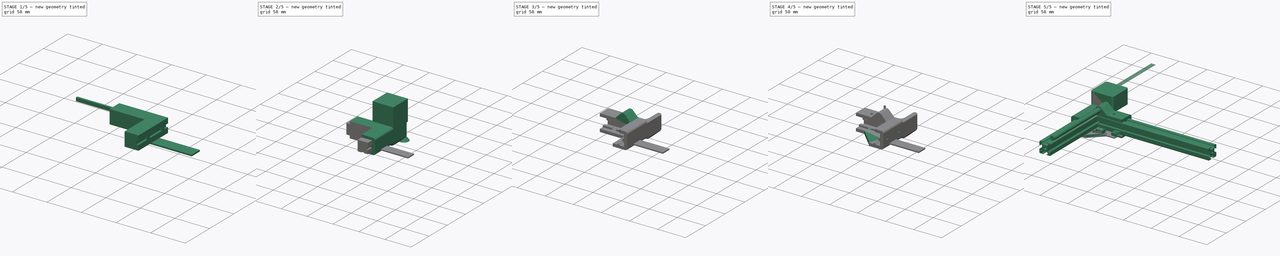
[diagram: build sequence overview — one tinted view per stage of 5, left to right]
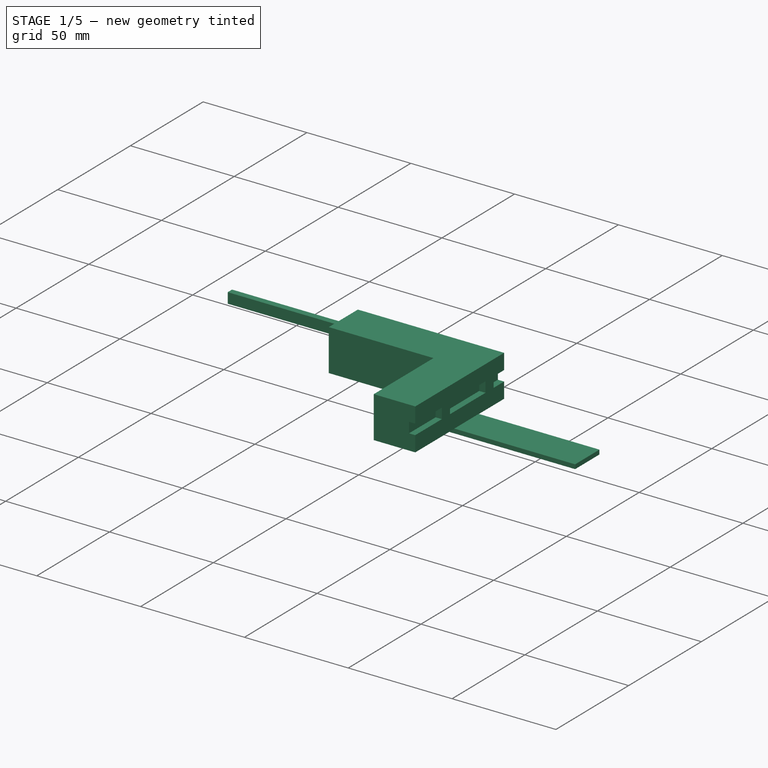
[diagram: stage 1 of 5 — iso view after this stage's code; geometry added in this stage tinted green]
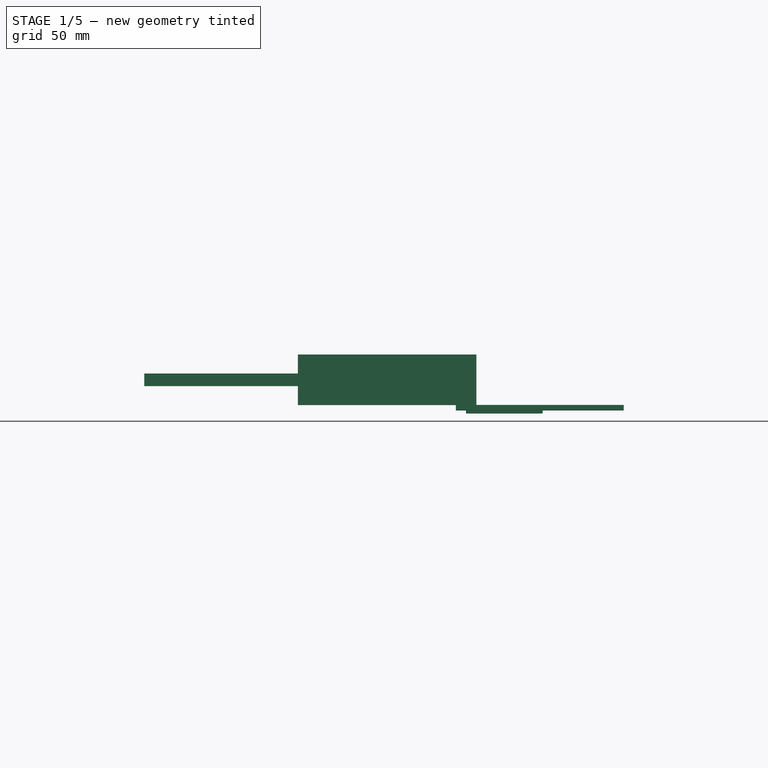
[diagram: stage 1 of 5 — front view after this stage's code; geometry added in this stage tinted green]
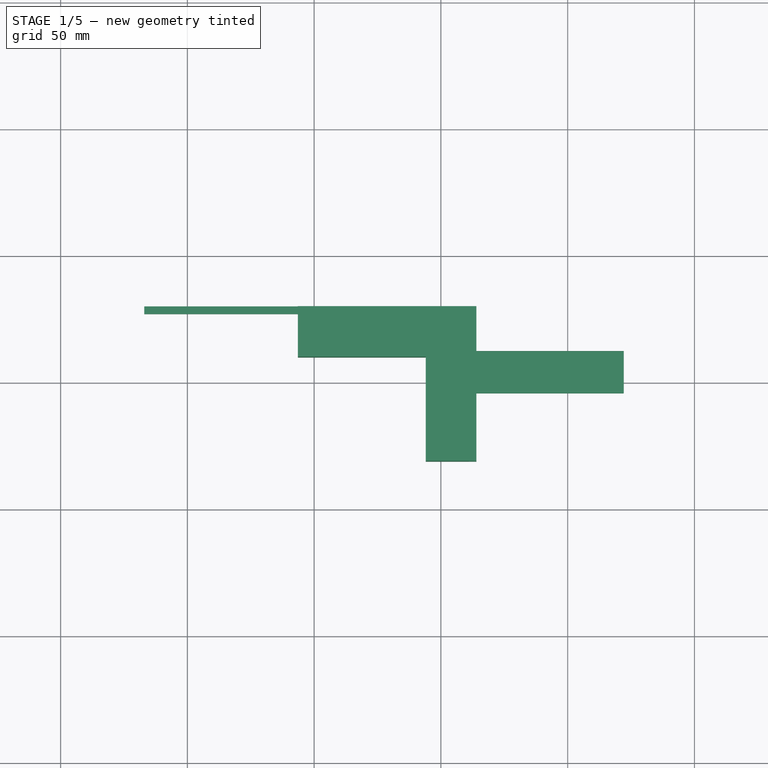
[diagram: stage 1 of 5 — top view after this stage's code; geometry added in this stage tinted green]
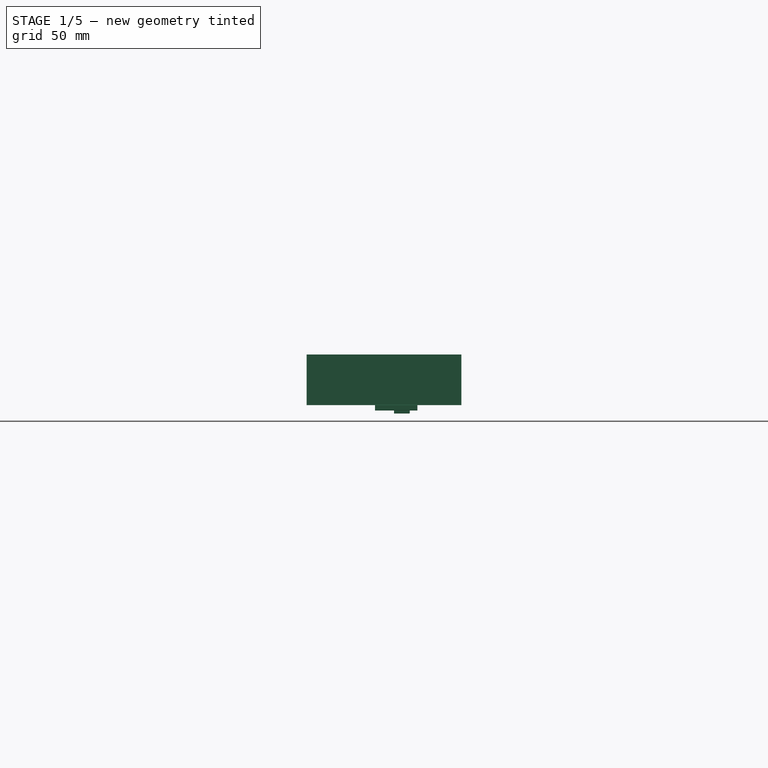
[diagram: stage 1 of 5 — right view after this stage's code; geometry added in this stage tinted green]
FCSTD DOCUMENT  (FreeCAD 0.16R6698 (Git))
Label: BackCorner
License: All rights reserved
LicenseURL: http://en.wikipedia.org/wiki/All_rights_reserved
objects: Part::Cut×20, Sketcher::SketchObject×17, Part::FeaturePython×15, Part::Mirroring×10, PartDesign::Pad×9, App::DocumentObjectGroup×6, Part::Box×5, Part::Fillet×4, Part::Compound×4, Part::Feature×3, Part::Extrusion×3, PartDesign::Pocket×2, PartDesign::Draft×2, Part::MultiCommon×2, Part::Chamfer×2, Part::Loft×1, Part::MultiFuse×1, Spreadsheet::Sheet×1, Part::Cone×1, Part::Cylinder×1, +1 more types
note: 114 computed .brp shape members not serialized (recipe doc carries the construction recipe); baked Part::Feature solids carry a one-line shape summary decoded from their .brp

FEATURE [Part::Box] Box002  label="20GuideHalf001"
  Height = 100
  Length = 3
  Placement = pos=(0,2.5,-2.825) rot=(1,0,0;3.14159rad)
  Width = 5
FEATURE [Sketcher::SketchObject] Sketch021  label="ProfBoltHeads"
  sketch-geometry (1):
    g0: Circle CenterX=0 CenterY=0 CenterZ=0 NormalX=0 NormalY=0 NormalZ=1 Radius=4
  constraints (2):
    c: Coincident(g0,g-1)
    c: Radius(g0) = 4
FEATURE [Sketcher::SketchObject] Sketch007  label="NEMAbolt"
  sketch-geometry (5):
    g0: ArcOfCircle CenterX=0 CenterY=0 CenterZ=0 NormalX=0 NormalY=0 NormalZ=1 Radius=1.5 StartAngle=3.927 EndAngle=8.63937
    g1: LineSegment StartX=-1.06065 StartY=1.06067 StartZ=0 EndX=-2.12132 EndY=0 EndZ=0
    g2: LineSegment StartX=-2.12132 StartY=0 StartZ=0 EndX=-1.06065 EndY=-1.06067 EndZ=0
    g3: LineSegment [constr] StartX=-2.12132 StartY=0 StartZ=0 EndX=0 EndY=0 EndZ=0
    g4: LineSegment [constr] StartX=-1.06065 StartY=1.06067 StartZ=0 EndX=-1.06065 EndY=-1.06067 EndZ=0
  constraints (13):
    c: Horizontal(g3)
    c: Coincident(g2,g0)
    c: Coincident(g1,g0)
    c: Coincident(g3,g1)
    c: Coincident(g2,g1)
    c: Coincident(g3,g0)
    c: Tangent(g1,g0)
    c: Tangent(g2,g0)
    c: Angle(g2,g1) = 1.5708
    c: Radius(g0) = 1.5
    c: Coincident(g4,g0)
    c: Coincident(g4,g0)
    c: Coincident(g0,g-1)
FEATURE [Part::Box] Box001  label="20GuideHalf"
  Height = 100
  Length = 3
  Placement = pos=(0,-2.5,2.825) rot=(0,0,1;0rad)
  Width = 5
FEATURE [Part::Compound] Compound001  label="20Guide"
  Links = -> [Box001,Box002]
FEATURE [Spreadsheet::Sheet] Spreadsheet  label="Parameters"
  cells = A1=Profile Tolerance; B1=0; A2=Smooth Rod Tolerance; B2=0; A3=Bolt Tolerance; B3=0
FEATURE [Sketcher::SketchObject] Sketch028  label="Profiles"
  expr: Constraints[12] = 20 + Parameters.B1
  sketch-geometry (6):
    g0: LineSegment StartX=-56.4275 StartY=-20 StartZ=0 EndX=-56.4275 EndY=-40 EndZ=0
    g1: LineSegment StartX=-56.4275 StartY=-40 StartZ=0 EndX=-6 EndY=-40 EndZ=0
    g2: LineSegment StartX=-6 StartY=-40 StartZ=0 EndX=-6 EndY=-81.0849 EndZ=0
    g3: LineSegment StartX=-6 StartY=-81.0849 StartZ=0 EndX=14 EndY=-81.0849 EndZ=0
    g4: LineSegment StartX=14 StartY=-81.0849 StartZ=0 EndX=14 EndY=-20 EndZ=0
    g5: LineSegment StartX=14 StartY=-20 StartZ=0 EndX=-56.4275 EndY=-20 EndZ=0
  constraints (16):
    c: Coincident(g0,g1)
    c: Coincident(g1,g2)
    c: Coincident(g2,g3)
    c: Coincident(g3,g4)
    c: Coincident(g4,g5)
    c: Coincident(g5,g0)
    c: Vertical(g0)
    c: Vertical(g2)
    c: Vertical(g4)
    c: Horizontal(g5)
    c: Horizontal(g1)
    c: Horizontal(g3)
    c: DistanceY(g0,g0) = 20
    c: DistanceY(g1) = -40
    c: DistanceX(g1) = -6
    c: Equal(g0,g3)
FEATURE [PartDesign::Pad] Pad006  label="Profiles001"
  Length = 20
  Length2 = 100
  Reversed = true
  Sketch = -> Sketch028
  Type = 0
FEATURE [Part::FeaturePython] Clone005  label="Clone of 20Guide"  # Draft clone (typed FeaturePython)
  Objects = -> [Compound001]
  Placement = pos=(14,-30,-10) rot=(0,0.707107,0.707107;3.14159rad)
  Scale = (1,1,1)
FEATURE [Part::FeaturePython] Clone006  label="Clone of Clone of 20Guide"  # Draft clone (typed FeaturePython)
  Objects = -> [Clone005]
  Placement = pos=(14,-60,-10) rot=(0,0.707107,0.707107;3.14159rad)
  Scale = (1,1,1)
FEATURE [Part::MultiCommon] Common  label="SideGuide"
  Shapes = -> [Clone005,Clone006]
FEATURE [Part::Box] Box004  label="Vert20Prof"
  Height = 20
  Length = 20
  Placement = pos=(-10,-10,-10) rot=(0,0,1;0rad)
  Width = 100
FEATURE [Part::FeaturePython] Clone007  label="Clone of Vert20Prof"  # Draft clone (typed FeaturePython)
  Objects = -> [Box004]
  Placement = pos=(-6,-40,-20) rot=(0,0,1;1.5708rad)
  Scale = (1,1,1)
FEATURE [Part::FeaturePython] Clone008  label="Clone of 20Guide001"  # Draft clone (typed FeaturePython)
  Objects = -> [Compound001]
  Placement = pos=(-29,-30,0) rot=(0,1,0;1.5708rad)
  Scale = (1,1,1)
FEATURE [Part::MultiCommon] Common001  label="GuideCut"
  Shapes = -> [Clone007,Clone008]
FEATURE [PartDesign::Draft] Draft001
  Angle = 45
  Base = -> Common001 [Face1,Face10]
  NeutralPlane = -> Common001 [Face2]
  Reversed = true
FEATURE [Part::Cut] Cut004
  Base = -> Pad006
  Tool = -> Common
FEATURE [Part::FeaturePython] Clone011  label="Clone of Draft001"  # Draft clone (typed FeaturePython)
  Objects = -> [Draft001]
  Placement = pos=(-11,-20,-40) rot=(-1,0,0;1.5708rad)
  Scale = (1,1,1)
FEATURE [Part::Box] Box005  label="EndstopPlate"
  Height = 2
  Length = 66
  Placement = pos=(-76,7,-12) rot=(0,0,1;0rad)
  Width = 16.5
FEATURE [App::DocumentObjectGroup] Group002  label="Guides_src"
  Group = -> [Compound001,Box001,Box002,Compound003,Box004,Box005]
FEATURE [Sketcher::SketchObject] Sketch042  label="SwitchPins"
  Placement = pos=(-76,7,-12) rot=(1,0,0;3.14159rad)
  Support = -> Box005 [Face5]
  sketch-geometry (4):
    g0: LineSegment StartX=32 StartY=-3 StartZ=0 EndX=62 EndY=-3 EndZ=0
    g1: LineSegment StartX=62 StartY=-3 StartZ=0 EndX=62 EndY=-9 EndZ=0
    g2: LineSegment StartX=62 StartY=-9 StartZ=0 EndX=32 EndY=-9 EndZ=0
    g3: LineSegment StartX=32 StartY=-9 StartZ=0 EndX=32 EndY=-3 EndZ=0
  constraints (12):
    c: Coincident(g0,g1)
    c: Coincident(g1,g2)
    c: Coincident(g2,g3)
    c: Coincident(g3,g0)
    c: Horizontal(g0)
    c: Horizontal(g2)
    c: Vertical(g1)
    c: Vertical(g3)
    c: DistanceX(g0) = 30
    c: DistanceY(g3) = 6
    c: DistanceY(g-1,g0) = -3
    c: DistanceX(g0) = 62
FEATURE [PartDesign::Pad] Pad014  label="SwitchPins001"
  Length = 1.2
  Length2 = 100
  Placement = pos=(-76,7,-12) rot=(0,0,1;0rad)
  Sketch = -> Sketch042
  Type = 0
FEATURE [Part::Offset] Offset001  label="EndstopTolerance001"
  Fill = false
  Intersection = false
  Join = 0
  Mode = 0
  Placement = pos=(-4,-30.5,-10) rot=(0,0,1;3.14159rad)
  SelfIntersection = false
  Source = -> Pad014
  Value = 0.1
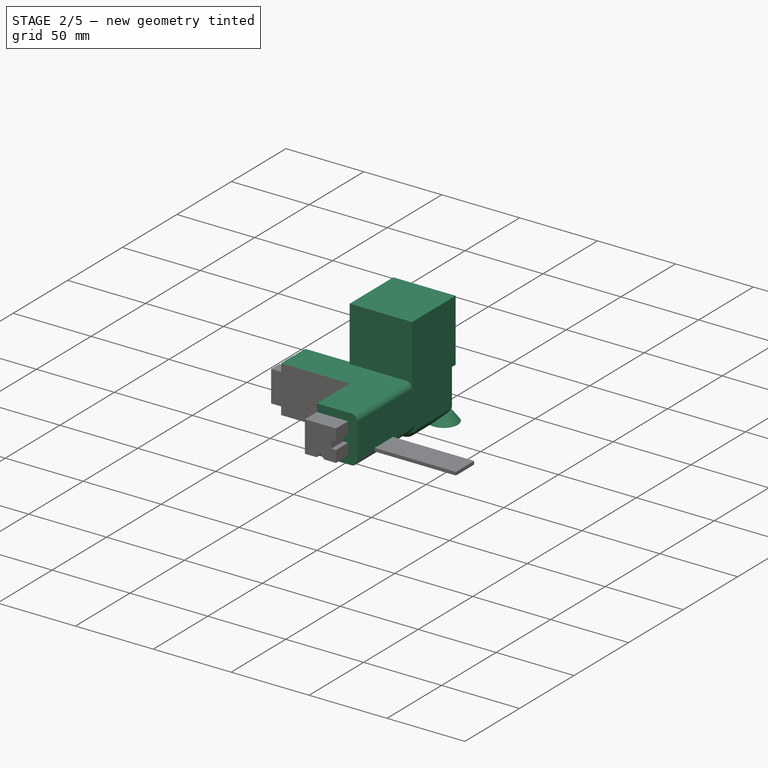
[diagram: stage 2 of 5 — iso view after this stage's code; geometry added in this stage tinted green]
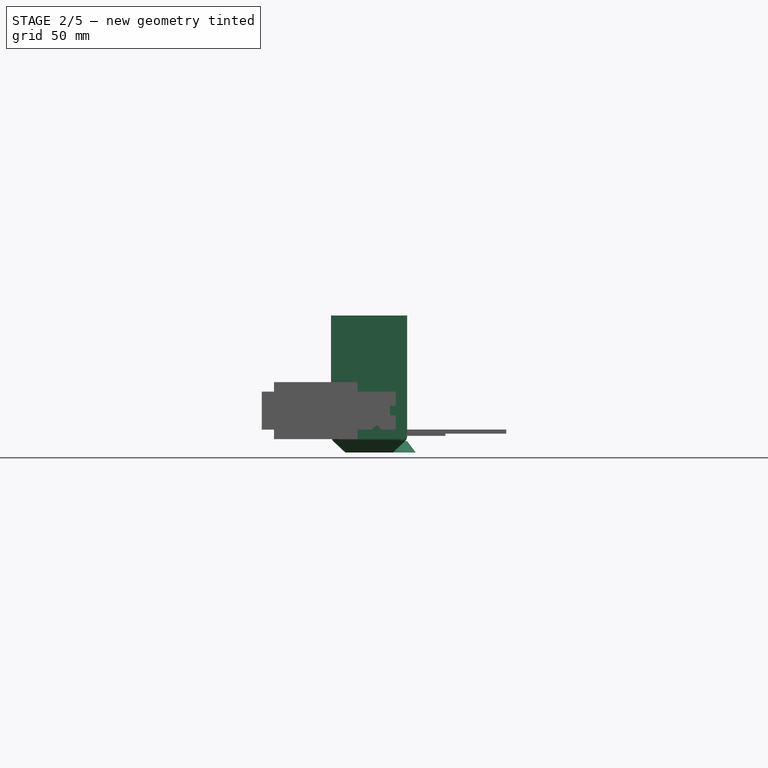
[diagram: stage 2 of 5 — front view after this stage's code; geometry added in this stage tinted green]
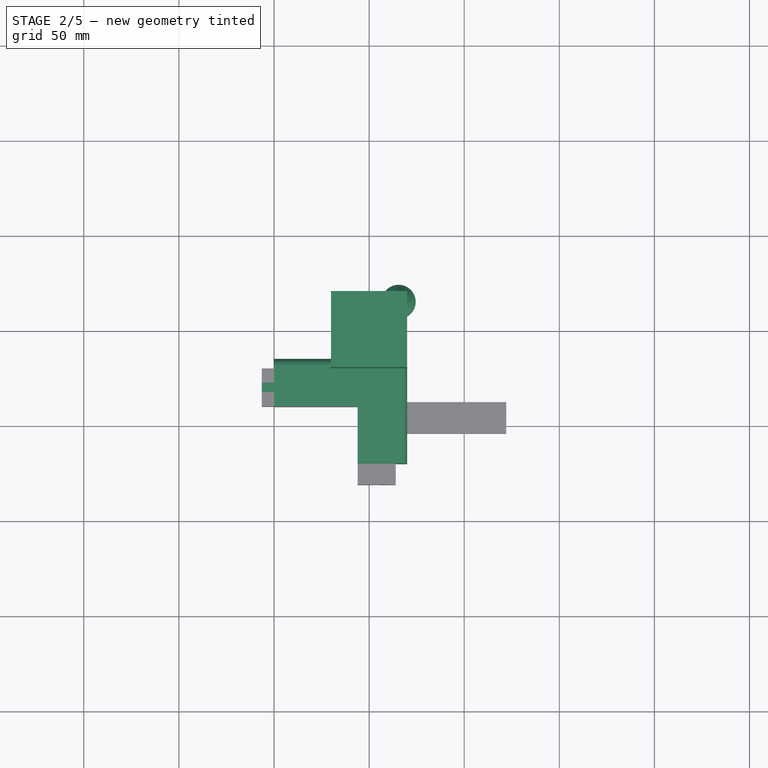
[diagram: stage 2 of 5 — top view after this stage's code; geometry added in this stage tinted green]
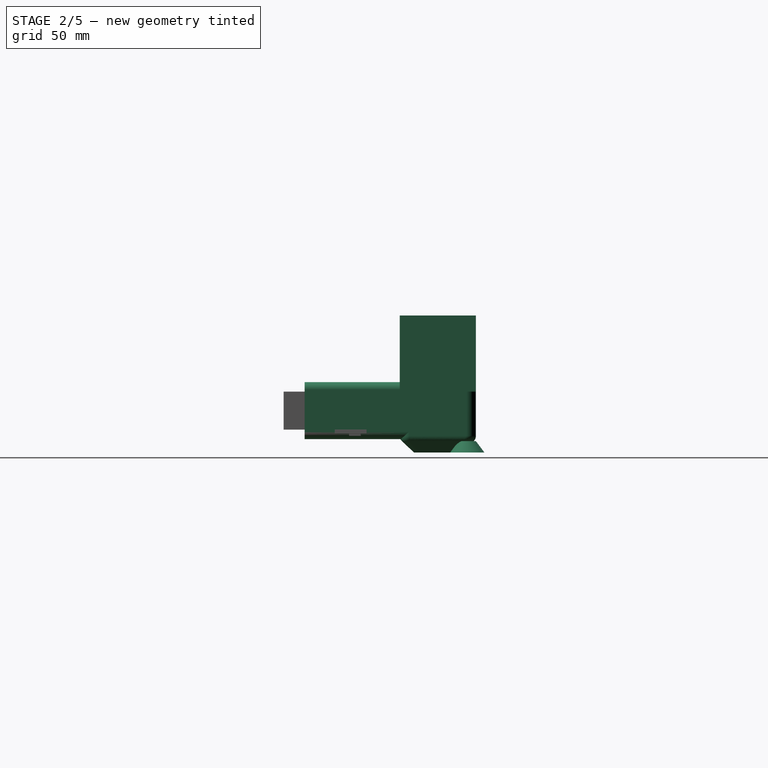
[diagram: stage 2 of 5 — right view after this stage's code; geometry added in this stage tinted green]
FEATURE [Sketcher::SketchObject] Sketch  label="StringPath"
  Placement = pos=(-106,-90,-10) rot=(0,0,1;0rad)
  sketch-geometry (18):
    g0: ArcOfCircle CenterX=-106 CenterY=90 CenterZ=0 NormalX=0 NormalY=0 NormalZ=1 Radius=5.5 StartAngle=6.27583 EndAngle=9.42478
    g1: ArcOfCircle CenterX=106 CenterY=90 CenterZ=0 NormalX=0 NormalY=0 NormalZ=1 Radius=5.5 StartAngle=8.0041e-08 EndAngle=3.17907
    g2: ArcOfCircle CenterX=105.5 CenterY=-82 CenterZ=0 NormalX=0 NormalY=0 NormalZ=1 Radius=6 StartAngle=3.09595 EndAngle=6.28319
    g3: ArcOfCircle CenterX=95 CenterY=-22 CenterZ=0 NormalX=0 NormalY=0 NormalZ=1 Radius=6 StartAngle=6.25815 EndAngle=7.85398
    g4: ArcOfCircle CenterX=95 CenterY=22 CenterZ=0 NormalX=0 NormalY=0 NormalZ=1 Radius=6 StartAngle=4.71239 EndAngle=6.29051
    g5: ArcOfCircle CenterX=-95 CenterY=22 CenterZ=0 NormalX=0 NormalY=0 NormalZ=1 Radius=6 StartAngle=3.13423 EndAngle=4.71239
    g6: ArcOfCircle CenterX=-95 CenterY=-22 CenterZ=0 NormalX=0 NormalY=0 NormalZ=1 Radius=6 StartAngle=1.5708 EndAngle=3.16664
    g7: ArcOfCircle CenterX=-105.5 CenterY=-82 CenterZ=0 NormalX=0 NormalY=0 NormalZ=1 Radius=6 StartAngle=3.14159 EndAngle=6.30824
    g8: LineSegment StartX=-111.5 StartY=90 StartZ=0 EndX=-111.5 EndY=-82 EndZ=0
    g9: LineSegment StartX=-100.998 StartY=-22.1503 StartZ=0 EndX=-99.5019 EndY=-81.8497 EndZ=0
    g10: LineSegment StartX=-95 StartY=-16 StartZ=0 EndX=95 EndY=-16 EndZ=0
    g11: LineSegment StartX=-100.5 StartY=89.9595 StartZ=0 EndX=-101 EndY=22.0442 EndZ=0
    g12: LineSegment StartX=100.504 StartY=89.7939 StartZ=0 EndX=101 EndY=22.0439 EndZ=0
    g13: LineSegment StartX=111.5 StartY=90 StartZ=0 EndX=111.5 EndY=-82 EndZ=0
    g14: LineSegment StartX=99.5062 StartY=-81.7262 StartZ=0 EndX=100.998 EndY=-22.1502 EndZ=0
    g15: LineSegment StartX=-95 StartY=16 StartZ=0 EndX=-21.9915 EndY=16 EndZ=0
    g16: LineSegment StartX=25.9262 StartY=16 StartZ=0 EndX=95 EndY=16 EndZ=0
    g17: LineSegment [constr] StartX=-59.6823 StartY=0 StartZ=0 EndX=-14.2958 EndY=0 EndZ=0
  constraints (52):
    c: Symmetric(g0,g1,g-2)
    c: Symmetric(g2,g7,g-2)
    c: Equal(g7,g2)
    c: Symmetric(g6,g3,g-2)
    c: Symmetric(g5,g4,g-2)
    c: DistanceY(g1) = 90
    c: DistanceY(g2) = -82
    c: Coincident(g13,g1)
    c: Coincident(g13,g2)
    c: Coincident(g14,g2)
    c: Coincident(g14,g3)
    c: Coincident(g3,g10)
    c: Coincident(g4,g12)
    c: Coincident(g6,g10)
    c: Coincident(g6,g9)
    c: Coincident(g7,g9)
    c: Coincident(g7,g8)
    c: Coincident(g8,g0)
    c: Coincident(g11,g0)
    c: Coincident(g12,g1)
    c: Coincident(g5,g11)
    c: Coincident(g16,g4)
    c: Coincident(g15,g5)
    c: Horizontal(g15)
    c: Horizontal(g16)
    c: PointOnObject(g15,g16)
    c: Tangent(g5,g15)
    c: Tangent(g11,g0)
    c: Tangent(g9,g7)
    c: Tangent(g9,g6)
    c: Tangent(g10,g3)
    c: Tangent(g16,g4)
    c: Equal(g6,g5)
    c: Tangent(g1,g13)
    c: Tangent(g8,g0)
    c: Radius(g4) = 6
    c: Radius(g2) = 6
    c: Tangent(g4,g12)
    c: DistanceX(g5) = -95
    c: Tangent(g10,g6)
    c: Tangent(g14,g3)
    c: Radius(g3) = 6
    c: Equal(g0,g1)
    c: Vertical(g8)
    c: Vertical(g13)
    c: Radius(g0) = 5.5
    c: DistanceX(g0) = -106
    c: Tangent(g5,g11)
    c: DistanceY(g6,g5) = 44
    c: Horizontal(g17)
    c: Symmetric(g5,g6,g17)
    c: PointOnObject(g17,g-1)
FEATURE [Sketcher::SketchObject] Sketch001  label="MotorStand1st"
  sketch-geometry (5):
    g0: LineSegment StartX=-20 StartY=20 StartZ=0 EndX=20 EndY=20 EndZ=0
    g1: LineSegment StartX=20 StartY=20 StartZ=0 EndX=20 EndY=-20 EndZ=0
    g2: LineSegment StartX=20 StartY=-20 StartZ=0 EndX=-20 EndY=-20 EndZ=0
    g3: LineSegment StartX=-20 StartY=-20 StartZ=0 EndX=-20 EndY=20 EndZ=0
    g4: GeomPoint [constr] X=0 Y=0 Z=0
  constraints (12):
    c: Coincident(g0,g1)
    c: Coincident(g1,g2)
    c: Coincident(g2,g3)
    c: Coincident(g3,g0)
    c: Horizontal(g0)
    c: Horizontal(g2)
    c: Vertical(g1)
    c: Vertical(g3)
    c: DistanceX(g0,g0) = 40
    c: Equal(g0,g1)
    c: Symmetric(g1,g0,g4)
    c: Coincident(g4,g-1)
FEATURE [Sketcher::SketchObject] Sketch002  label="MotorStand2nd"
  Placement = pos=(0,0,-25) rot=(0,0,1;0rad)
  sketch-geometry (5):
    g0: LineSegment StartX=-20 StartY=20 StartZ=0 EndX=20 EndY=20 EndZ=0
    g1: LineSegment StartX=20 StartY=20 StartZ=0 EndX=20 EndY=-20 EndZ=0
    g2: LineSegment StartX=20 StartY=-20 StartZ=0 EndX=-20 EndY=-20 EndZ=0
    g3: LineSegment StartX=-20 StartY=-20 StartZ=0 EndX=-20 EndY=20 EndZ=0
    g4: GeomPoint [constr] X=0 Y=0 Z=0
  constraints (12):
    c: Coincident(g0,g1)
    c: Coincident(g1,g2)
    c: Coincident(g2,g3)
    c: Coincident(g3,g0)
    c: Horizontal(g0)
    c: Horizontal(g2)
    c: Vertical(g1)
    c: Vertical(g3)
    c: DistanceX(g0,g0) = 40
    c: Equal(g0,g1)
    c: Symmetric(g1,g0,g4)
    c: Coincident(g4,g-1)
FEATURE [Sketcher::SketchObject] Sketch003  label="MotorStand3rd"
  Placement = pos=(0,0,-32) rot=(0,0,1;0rad)
  sketch-geometry (5):
    g0: LineSegment StartX=-12.5 StartY=12.5 StartZ=0 EndX=12.5 EndY=12.5 EndZ=0
    g1: LineSegment StartX=12.5 StartY=12.5 StartZ=0 EndX=12.5 EndY=-12.5 EndZ=0
    g2: LineSegment StartX=12.5 StartY=-12.5 StartZ=0 EndX=-12.5 EndY=-12.5 EndZ=0
    g3: LineSegment StartX=-12.5 StartY=-12.5 StartZ=0 EndX=-12.5 EndY=12.5 EndZ=0
    g4: GeomPoint [constr] X=0 Y=0 Z=0
  constraints (12):
    c: Coincident(g0,g1)
    c: Coincident(g1,g2)
    c: Coincident(g2,g3)
    c: Coincident(g3,g0)
    c: Horizontal(g0)
    c: Horizontal(g2)
    c: Vertical(g1)
    c: Vertical(g3)
    c: DistanceX(g0,g0) = 25
    c: Equal(g0,g1)
    c: Symmetric(g1,g0,g4)
    c: Coincident(g4,g-1)
FEATURE [Part::Feature] Chamfer003003  label="PulleyCover"
  Placement = pos=(4,0,0) rot=(0,0,1;0rad)
  shape: bbox 90 x 90 x 49 mm, 162 faces (baked)
FEATURE [Part::Loft] Loft  label="MotorMount"
  Closed = false
  Ruled = true
  Sections = -> [Sketch001,Sketch002,Sketch003]
  Solid = true
FEATURE [Part::Fillet] Fillet  label="MotorMountFillet"
  Base = -> Loft
  Edges = 12 edges: [Edge2 r=5,Edge3 r=4,Edge4 r=8,Edge6 r=5,Edge7 r=4,Edge9 r=5,Edge10 r=4,Edge12 r=4,Edge13 r=8,Edge15 r=8,Edge16 r=5,Edge18 r=5]
FEATURE [Sketcher::SketchObject] Sketch004  label="Main"
  sketch-geometry (6):
    g0: LineSegment StartX=-50 StartY=-15 StartZ=0 EndX=-50 EndY=-40 EndZ=0
    g1: LineSegment StartX=-50 StartY=-40 StartZ=0 EndX=-6 EndY=-40 EndZ=0
    g2: LineSegment StartX=-6 StartY=-40 StartZ=0 EndX=-6 EndY=-70 EndZ=0
    g3: LineSegment StartX=-6 StartY=-70 StartZ=0 EndX=20 EndY=-70 EndZ=0
    g4: LineSegment StartX=20 StartY=-70 StartZ=0 EndX=20 EndY=-15 EndZ=0
    g5: LineSegment StartX=20 StartY=-15 StartZ=0 EndX=-50 EndY=-15 EndZ=0
  constraints (18):
    c: Coincident(g0,g1)
    c: Coincident(g1,g2)
    c: Coincident(g2,g3)
    c: Coincident(g3,g4)
    c: Coincident(g4,g5)
    c: Coincident(g5,g0)
    c: Vertical(g2)
    c: Vertical(g4)
    c: Vertical(g0)
    c: Horizontal(g1)
    c: Horizontal(g5)
    c: Horizontal(g3)
    c: DistanceY(g0,g0) = 25
    c: DistanceX(g3,g3) = 26
    c: DistanceX(g1) = -6
    c: DistanceY(g1) = -40
    c: DistanceX(g5,g5) = 70
    c: DistanceY(g4,g4) = 55
FEATURE [PartDesign::Pad] Pad  label="Main001"
  Length = 5
  Length2 = 25
  Sketch = -> Sketch004
  Type = 4
FEATURE [Part::Fillet] Fillet001  label="MainFillet"
  Base = -> Pad
  Edges = 4 edges r=4: [Edge15,Edge16,Edge17,Edge18]
FEATURE [Part::Extrusion] Extrude005  label="20AngledGuideHalf001"
  Base = -> Sketch026
  Dir = (0,0,-100)
  Placement = pos=(0,0,-2.825) rot=(0,0,1;0rad)
  Solid = true
FEATURE [App::DocumentObjectGroup] Group001  label="NEMABolts"
  Group = -> [Pad005]
FEATURE [Part::Extrusion] Extrude004  label="20AngledGuideHalf"
  Base = -> Sketch026
  Dir = (0,0,100)
  Placement = pos=(0,0,2.825) rot=(0,0,1;0rad)
  Solid = true
FEATURE [Part::Compound] Compound003  label="20AngledGuide"
  Links = -> [Extrude004,Extrude005]
FEATURE [Part::Box] Box  label="NEMACut"
  Height = 40
  Length = 40
  Placement = pos=(-20,-20,0) rot=(0,0,1;0rad)
  Width = 40
FEATURE [Part::Cone] Cone  label="NEMABoltHead"
  Angle = 360
  Height = 6
  Radius1 = 4.5
  Radius2 = 9
FEATURE [Part::FeaturePython] Clone  label="Clone of NEMABoltHead"  # Draft clone (typed FeaturePython)
  Objects = -> [Cone]
  Placement = pos=(15.5,15.5,-26) rot=(1,0,0;3.14159rad)
  Scale = (1,1,1)
FEATURE [Part::Mirroring] Part__Mirroring010  label="Draft001 (Mirror #7)"
  Base = (0,0,-10)
  Normal = (0,0,1)
  Source = -> Draft001
FEATURE [Part::FeaturePython] Clone009  label="Clone of 20AngledGuide"  # Draft clone (typed FeaturePython)
  Objects = -> [Compound003]
  Placement = pos=(4,-45,-20) rot=(1,0,0;1.5708rad)
  Scale = (1,1,1)
FEATURE [Part::Cut] Cut005
  Base = -> Cut004
  Tool = -> Clone009
FEATURE [Part::Cut] Cut006
  Base = -> Cut005
  Tool = -> Draft001
FEATURE [Part::Cut] Cut007
  Base = -> Cut006
  Tool = -> Part__Mirroring010
FEATURE [Part::Cut] Cut008  label="GuidesCut"
  Base = -> Cut007
  Tool = -> Clone011
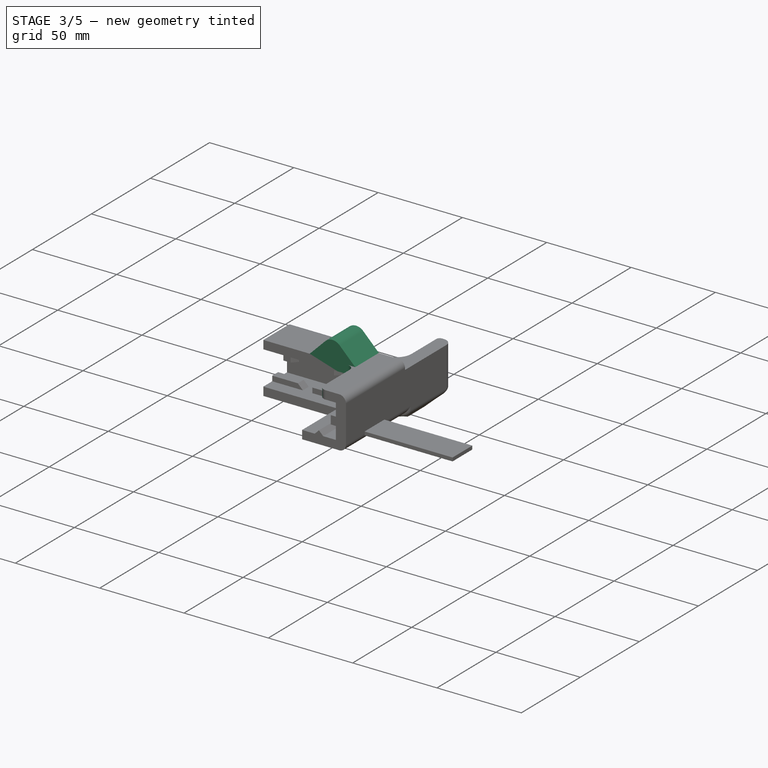
[diagram: stage 3 of 5 — iso view after this stage's code; geometry added in this stage tinted green]
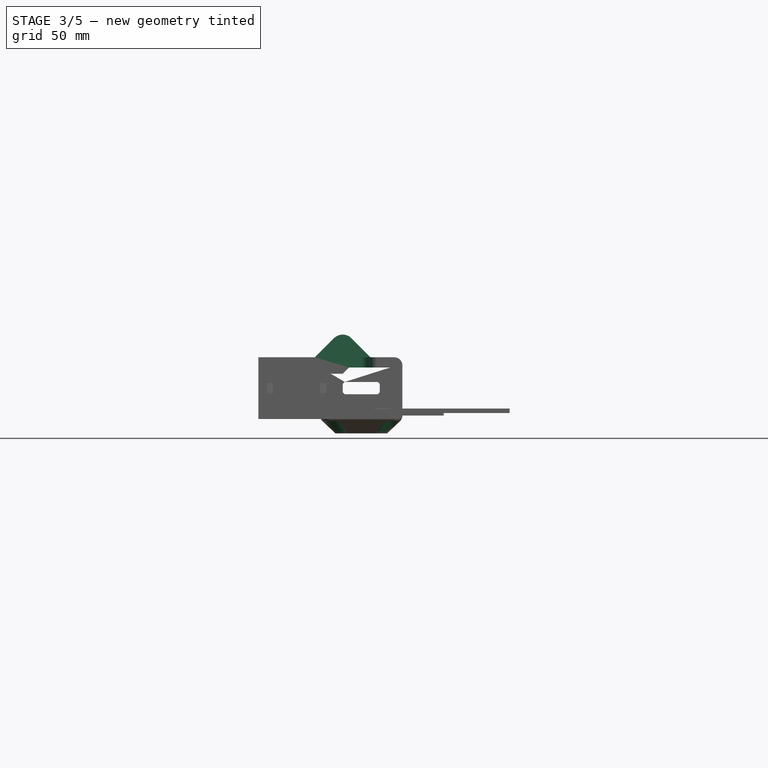
[diagram: stage 3 of 5 — front view after this stage's code; geometry added in this stage tinted green]
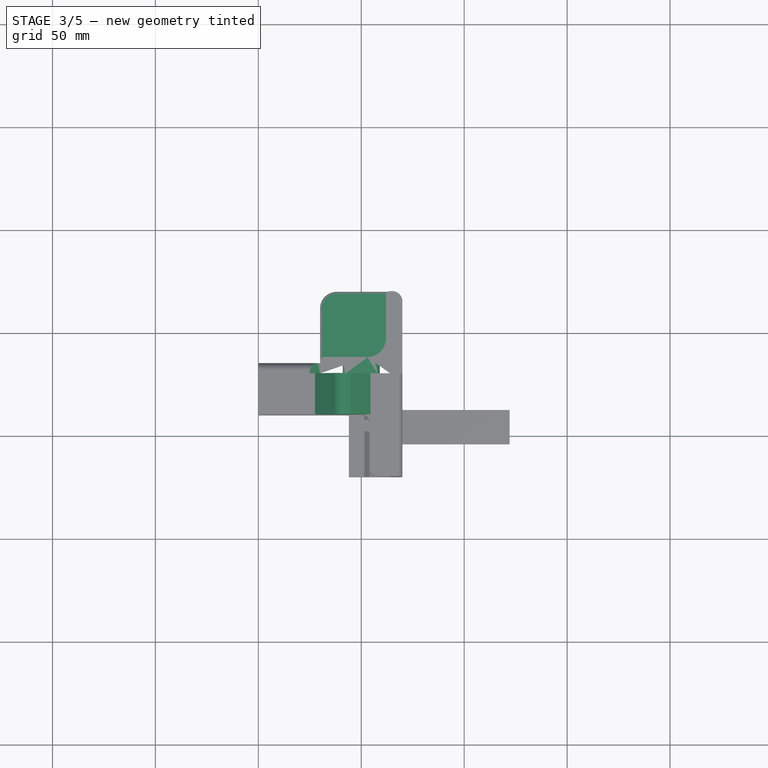
[diagram: stage 3 of 5 — top view after this stage's code; geometry added in this stage tinted green]
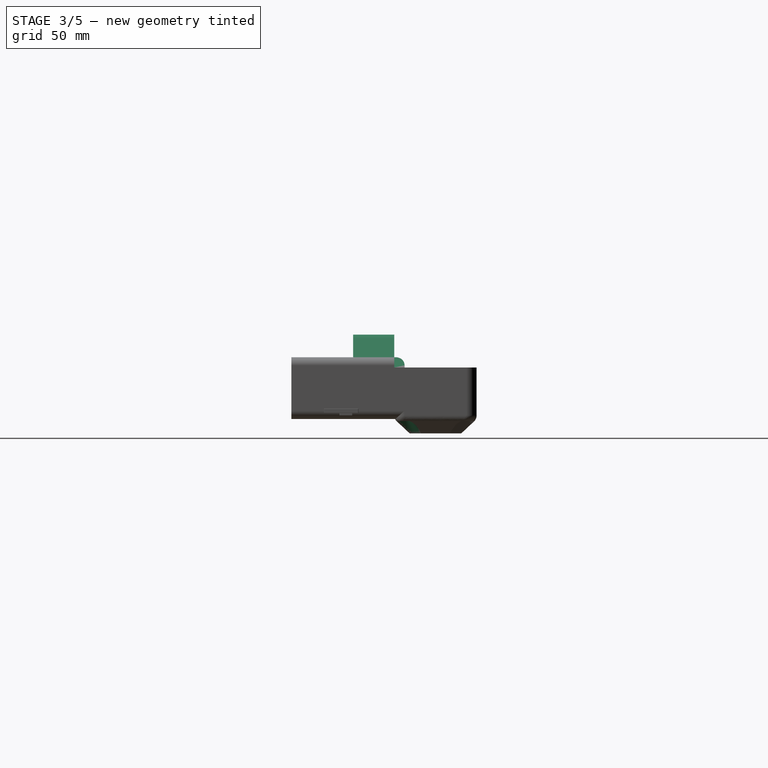
[diagram: stage 3 of 5 — right view after this stage's code; geometry added in this stage tinted green]
FEATURE [Part::MultiFuse] Fusion  label="MainBody"
  Shapes = -> [Fillet,Fillet001]
FEATURE [Sketcher::SketchObject] Sketch027  label="AntiCollitionCut"
  Placement = pos=(0,0,5) rot=(0,0,1;0rad)
  Support = -> Fusion [Face28]
  sketch-geometry (4):
    g0: LineSegment StartX=4 StartY=-40 StartZ=0 EndX=-18.9802 EndY=-40 EndZ=0
    g1: LineSegment StartX=-18.9802 StartY=-40 StartZ=0 EndX=-18.9802 EndY=-82.0857 EndZ=0
    g2: LineSegment StartX=-18.9802 StartY=-82.0857 StartZ=0 EndX=4 EndY=-82.0857 EndZ=0
    g3: LineSegment StartX=4 StartY=-82.0857 StartZ=0 EndX=4 EndY=-40 EndZ=0
  constraints (10):
    c: Coincident(g0,g1)
    c: Coincident(g1,g2)
    c: Coincident(g2,g3)
    c: Coincident(g3,g0)
    c: Horizontal(g0)
    c: Horizontal(g2)
    c: Vertical(g1)
    c: Vertical(g3)
    c: DistanceX(g0) = 4
    c: DistanceY(g0) = -40
FEATURE [PartDesign::Pocket] Pocket  label="AntiCollitionCut001"
  Length = 20
  Sketch = -> Sketch027
  Type = 0
FEATURE [Part::Fillet] Fillet002  label="AntiCollitionFillet"
  Base = -> Pocket
  Edges = 2 edges r=4: [Edge31,Edge65]
FEATURE [Part::Cut] Cut  label="NEMACut001"
  Base = -> Fillet002
  Tool = -> Box
FEATURE [PartDesign::Draft] Draft  label="PrintableDraft"
  Angle = 45
  Base = -> Cut [Face13]
  NeutralPlane = -> Cut [Face42]
FEATURE [Sketcher::SketchObject] Sketch029  label="PulleySpace"
  Support = -> Draft [Face42]
  sketch-geometry (5):
    g0: LineSegment StartX=3 StartY=-12 StartZ=0 EndX=-39.3173 EndY=-12 EndZ=0
    g1: LineSegment StartX=-39.3173 StartY=-12 StartZ=0 EndX=-39.3173 EndY=25.181 EndZ=0
    g2: LineSegment StartX=-39.3173 StartY=25.181 StartZ=0 EndX=12 EndY=25.181 EndZ=0
    g3: LineSegment StartX=12 StartY=25.181 StartZ=0 EndX=12 EndY=-3 EndZ=0
    g4: ArcOfCircle CenterX=3 CenterY=-3 CenterZ=0 NormalX=0 NormalY=0 NormalZ=1 Radius=9 StartAngle=4.71239 EndAngle=6.28319
  constraints (12):
    c: Coincident(g0,g1)
    c: Coincident(g1,g2)
    c: Coincident(g2,g3)
    c: Horizontal(g0)
    c: Horizontal(g2)
    c: Vertical(g1)
    c: Vertical(g3)
    c: DistanceX(g2) = 12
    c: DistanceY(g0) = -12
    c: Tangent(g3,g4) = 1.5708
    c: Tangent(g0,g4) = 1.5708
    c: Radius(g4) = 9
FEATURE [PartDesign::Pocket] Pocket001  label="AntiCreaseFillet001"
  Length = 22
  Sketch = -> Sketch029
  Type = 0
FEATURE [Part::Fillet] Fillet003  label="AntiCreaseFillet"
  Base = -> Pocket001
  Edges = 3 edges: [Edge78 r=2,Edge79 r=0.8,Edge86 r=2]
FEATURE [Part::Mirroring] Part__Mirroring008  label="Clone of NEMABoltHead (Mirror #5)"
  Base = (0,0,0)
  Normal = (0,1,0)
  Source = -> Clone
FEATURE [Part::Mirroring] Part__Mirroring009  label="Clone of NEMABoltHead (Mirror #6)"
  Base = (0,0,0)
  Normal = (1,0,0)
  Source = -> Part__Mirroring008
FEATURE [Part::Cut] Cut001
  Base = -> Fillet003
  Tool = -> Clone
FEATURE [Part::Cut] Cut002
  Base = -> Cut001
  Tool = -> Part__Mirroring008
FEATURE [Part::Cut] Cut003  label="NEMABoltHeads"
  Base = -> Cut002
  Tool = -> Part__Mirroring009
FEATURE [Sketcher::SketchObject] Sketch030  label="SmRodHolder"
  Placement = pos=(0,-40,0) rot=(1,0,0;1.5708rad)
  Support = -> Cut003 [Face45]
  sketch-geometry (4):
    g0: ArcOfCircle CenterX=-9 CenterY=10 CenterZ=0 NormalX=0 NormalY=0 NormalZ=1 Radius=6 StartAngle=0.785398 EndAngle=2.35619
    g1: LineSegment StartX=-13.2426 StartY=14.2426 StartZ=0 EndX=-25.5273 EndY=1.95796 EndZ=0
    g2: LineSegment StartX=-25.5273 StartY=1.95796 StartZ=0 EndX=7.52732 EndY=1.95796 EndZ=0
    g3: LineSegment StartX=7.52732 StartY=1.95796 StartZ=0 EndX=-4.75736 EndY=14.2426 EndZ=0
  constraints (12):
    c: Coincident(g1,g2)
    c: Coincident(g2,g3)
    c: Coincident(g3,g0)
    c: Coincident(g1,g0)
    c: Tangent(g0,g1)
    c: Tangent(g0,g3)
    c: DistanceY(g0) = 10
    c: DistanceX(g0) = -9
    c: Radius(g0) = 6
    c: Horizontal(g2)
    c: Perpendicular(g3,g1)
    c: Angle(g1) = -2.35619
FEATURE [PartDesign::Pad] Pad007  label="SmRodHolder001"
  Length = 20
  Length2 = 100
  Reversed = true
  Sketch = -> Sketch030
  Type = 0
FEATURE [Part::Cut] Cut009
  Base = -> Pad007
  Tool = -> Cut008
FEATURE [Sketcher::SketchObject] Sketch041  label="StringWindow"
  Placement = pos=(0,-12,0) rot=(0,0.707107,0.707107;3.14159rad)
  Support = -> Cut009 [Face48]
  sketch-geometry (5):
    g0: LineSegment StartX=9 StartY=-7 StartZ=0 EndX=-9 EndY=-7 EndZ=0
    g1: LineSegment StartX=-9 StartY=-7 StartZ=0 EndX=-9 EndY=-13 EndZ=0
    g2: LineSegment StartX=-9 StartY=-13 StartZ=0 EndX=9 EndY=-13 EndZ=0
    g3: LineSegment StartX=9 StartY=-13 StartZ=0 EndX=9 EndY=-7 EndZ=0
    g4: GeomPoint [constr] X=0 Y=-10 Z=0
  constraints (13):
    c: Coincident(g0,g1)
    c: Coincident(g1,g2)
    c: Coincident(g2,g3)
    c: Coincident(g3,g0)
    c: Horizontal(g0)
    c: Horizontal(g2)
    c: Vertical(g1)
    c: Vertical(g3)
    c: Symmetric(g2,g0,g4)
    c: DistanceY(g4) = -10
    c: PointOnObject(g4,g-2)
    c: DistanceY(g3,g3) = 6
    c: DistanceX(g2,g2) = 18
FEATURE [Part::Extrusion] Extrude_Sketch041  label="StringWindow_Extrude"
  Base = -> Sketch041
  Dir = (0,-30,0)
  Placement = pos=(0,5,0) rot=(0,0,1;0rad)
  Solid = true
FEATURE [Part::Chamfer] Chamfer  label="StringWindow001"
  Base = -> Extrude_Sketch041
  Edges = 4 edges r=1: [Edge1,Edge2,Edge5,Edge8]
FEATURE [Part::Cut] Cut010  label="StringWindowCut"
  Base = -> Cut009
  Tool = -> Chamfer
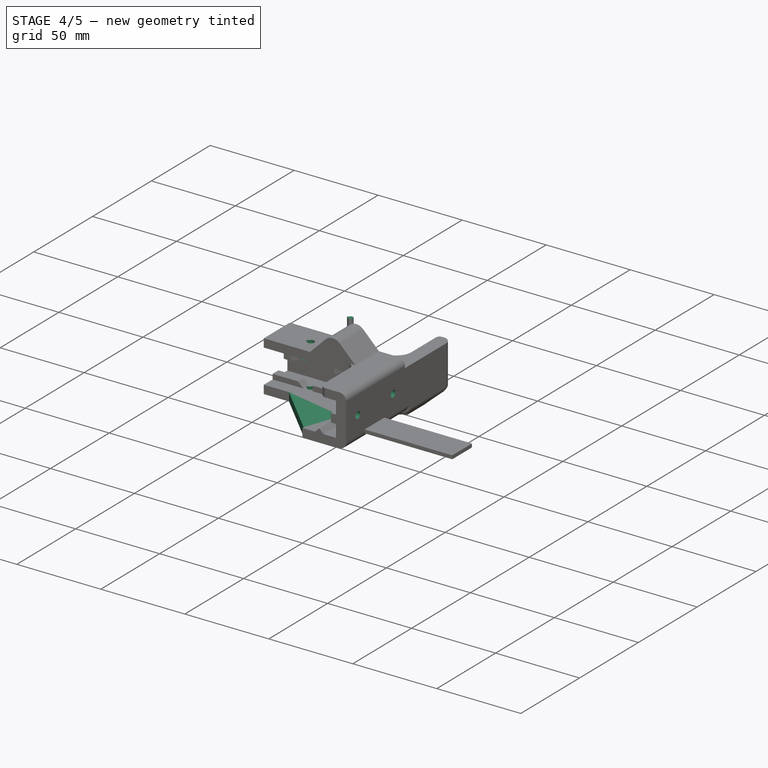
[diagram: stage 4 of 5 — iso view after this stage's code; geometry added in this stage tinted green]
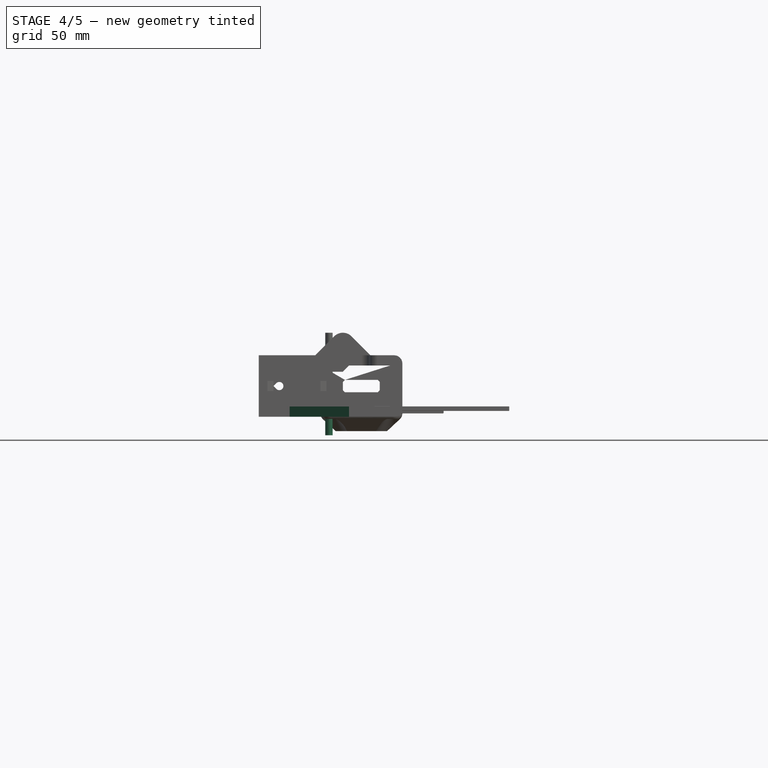
[diagram: stage 4 of 5 — front view after this stage's code; geometry added in this stage tinted green]
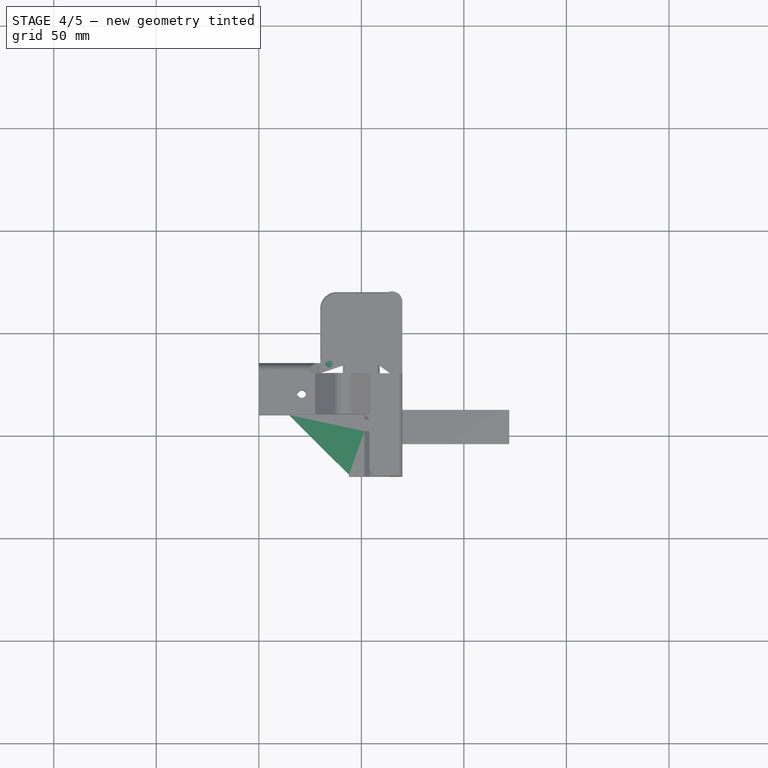
[diagram: stage 4 of 5 — top view after this stage's code; geometry added in this stage tinted green]
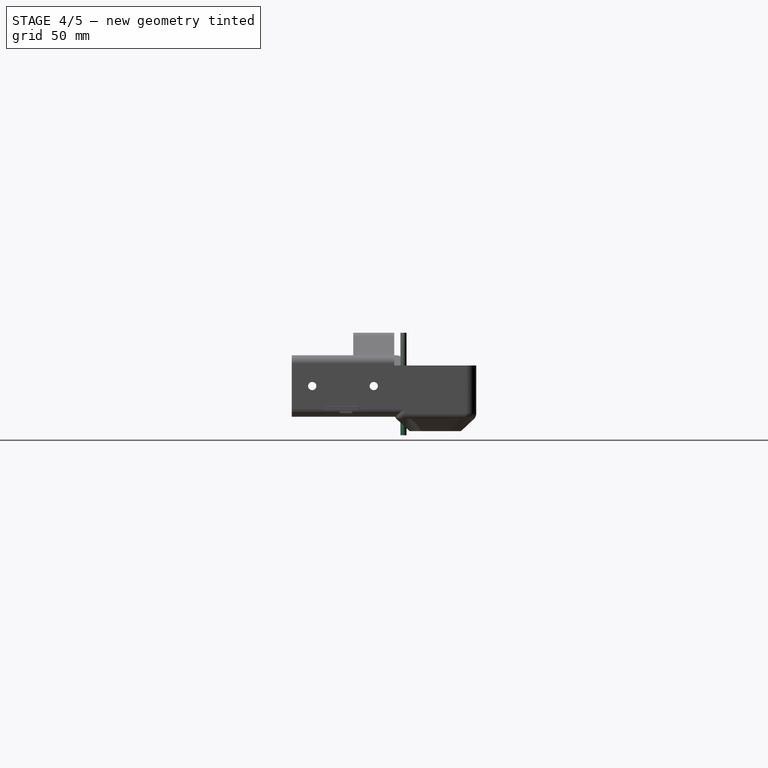
[diagram: stage 4 of 5 — right view after this stage's code; geometry added in this stage tinted green]
FEATURE [Sketcher::SketchObject] Sketch026  label="20AngledGuideSketch"
  sketch-geometry (3):
    g0: LineSegment StartX=0 StartY=2.5 StartZ=0 EndX=-2.5 EndY=0 EndZ=0
    g1: LineSegment StartX=-2.5 StartY=0 StartZ=0 EndX=2.5 EndY=0 EndZ=0
    g2: LineSegment StartX=2.5 StartY=0 StartZ=0 EndX=0 EndY=2.5 EndZ=0
  constraints (9):
    c: Coincident(g0,g1)
    c: Coincident(g1,g2)
    c: Coincident(g2,g0)
    c: Horizontal(g1)
    c: PointOnObject(g0,g-1)
    c: PointOnObject(g0,g-2)
    c: Symmetric(g1,g0,g-2)
    c: Perpendicular(g2,g0)
    c: DistanceX(g1) = 5
FEATURE [PartDesign::Pad] Pad002  label="ProfBoltHeads001"
  Length = 10
  Length2 = 100
  Reversed = true
  Sketch = -> Sketch021
  Type = 0
FEATURE [Sketcher::SketchObject] Sketch022  label="ProfBoltThread"
  Support = -> Pad002 [Face2]
  sketch-geometry (4):
    g0: ArcOfCircle CenterX=0 CenterY=0 CenterZ=0 NormalX=0 NormalY=0 NormalZ=1 Radius=2 StartAngle=2.3562 EndAngle=7.06858
    g1: LineSegment StartX=-1.41422 StartY=1.4142 StartZ=0 EndX=1.5e-11 EndY=2.82843 EndZ=0
    g2: LineSegment StartX=1.5e-11 StartY=2.82843 StartZ=0 EndX=1.41422 EndY=1.4142 EndZ=0
    g3: LineSegment [constr] StartX=-1.41422 StartY=1.4142 StartZ=0 EndX=1.41422 EndY=1.4142 EndZ=0
  constraints (11):
    c: Coincident(g1,g2)
    c: Coincident(g1,g0)
    c: Coincident(g2,g0)
    c: Coincident(g3,g0)
    c: Coincident(g3,g0)
    c: Tangent(g0,g1)
    c: Tangent(g2,g0)
    c: Horizontal(g3)
    c: Coincident(g0,g-1)
    c: Radius(g0) = 2
    c: Angle(g1,g2) = 1.5708
FEATURE [PartDesign::Pad] Pad003  label="ProfBoltThread001"
  Length = 10
  Length2 = 100
  Sketch = -> Sketch022
  Type = 0
FEATURE [PartDesign::Pad] Pad005  label="NEMABoltThread"
  Length = 50
  Length2 = 100
  Sketch = -> Sketch007
  Type = 0
FEATURE [Part::FeaturePython] Clone001  label="Clone of ProfBoltThread001"  # Draft clone (typed FeaturePython)
  Objects = -> [Pad003]
  Placement = pos=(0,0,16) rot=(0.707107,-0.707107,0;3.14159rad)
  Scale = (1,1,1)
FEATURE [Part::FeaturePython] Array  label="BackBolts"  # Draft array (typed FeaturePython)
  Angle = 180
  ArrayType = 1
  Axis = (-1,0,0)
  Base = -> Clone001
  Center = (0,0,0)
  Fuse = false
  IntervalAxis = (0,0,0)
  IntervalX = (1,0,0)
  IntervalY = (0,1,0)
  IntervalZ = (0,0,0)
  NumberPolar = 2
  NumberX = 2
  NumberY = 0
  NumberZ = 1
  Placement = pos=(-29,-30,-10) rot=(0,0,1;0rad)
FEATURE [Part::FeaturePython] Clone002  label="Clone of ProfBoltThread002"  # Draft clone (typed FeaturePython)
  Objects = -> [Pad003]
  Placement = pos=(-40,-14,-10) rot=(0.57735,-0.57735,0.57735;2.0944rad)
  Scale = (1,1,1)
FEATURE [Sketcher::SketchObject] Sketch039  label="M4BoltHead"
  sketch-geometry (1):
    g0: Circle CenterX=0 CenterY=0 CenterZ=0 NormalX=0 NormalY=0 NormalZ=1 Radius=4
  constraints (2):
    c: Coincident(g0,g-1)
    c: Radius(g0) = 4
FEATURE [PartDesign::Pad] Pad012  label="M4BoltHead001"
  Length = 10
  Length2 = 100
  Reversed = true
  Sketch = -> Sketch039
  Type = 0
FEATURE [Sketcher::SketchObject] Sketch040  label="M4Bolt"
  Support = -> Pad012 [Face2]
  sketch-geometry (1):
    g0: Circle CenterX=0 CenterY=0 CenterZ=0 NormalX=0 NormalY=0 NormalZ=1 Radius=2
  constraints (2):
    c: Coincident(g0,g-1)
    c: Radius(g0) = 2
FEATURE [PartDesign::Pad] Pad013  label="M4Bolt001"
  Length = 20
  Length2 = 100
  Sketch = -> Sketch040
  Type = 0
FEATURE [App::DocumentObjectGroup] Grupo002  label="ProfileBolts"
  Group = -> [Pad002,Pad003,Pad012,Pad013]
FEATURE [App::DocumentObjectGroup] Grupo  label="Bolt_src"
  Group = -> [Grupo002,Group001,Cone]
FEATURE [Part::FeaturePython] Clone003  label="Clone of M4Bolt001"  # Draft clone (typed FeaturePython)
  Objects = -> [Pad013]
  Placement = pos=(21,-30,-10) rot=(0,-1,0;1.5708rad)
  Scale = (1,1,1)
FEATURE [Part::FeaturePython] Array001  label="SideBolts"  # Draft array (typed FeaturePython)
  Angle = 360
  ArrayType = 0
  Axis = (0,0,1)
  Base = -> Clone003
  Center = (0,0,0)
  Fuse = false
  IntervalAxis = (0,0,0)
  IntervalX = (1,0,0)
  IntervalY = (0,-30,0)
  IntervalZ = (0,0,0)
  NumberPolar = 1
  NumberX = 1
  NumberY = 2
  NumberZ = 1
FEATURE [Part::FeaturePython] Clone012  label="Clone of NEMABoltThread"  # Draft clone (typed FeaturePython)
  Objects = -> [Pad005]
  Placement = pos=(15.5,-15.5,-35) rot=(0,0,1;0rad)
  Scale = (1,1,1)
FEATURE [Part::FeaturePython] Clone013  label="Clone of Clone of NEMABoltThread"  # Draft clone (typed FeaturePython)
  Objects = -> [Clone012]
  Placement = pos=(-15.5,-15.5,-34) rot=(0,0,1;0rad)
  Scale = (1,1,1)
FEATURE [Part::Chamfer] Chamfer003004  label="ReinforcingChamfer"
  Base = -> Cut010
  Edges = 1 edges r=29: [Edge110]
FEATURE [Part::Cut] Cut011
  Base = -> Chamfer003004
  Tool = -> Array
FEATURE [Part::Cut] Cut012
  Base = -> Cut011
  Tool = -> Clone002
FEATURE [Part::Cut] Cut013
  Base = -> Cut012
  Tool = -> Array001
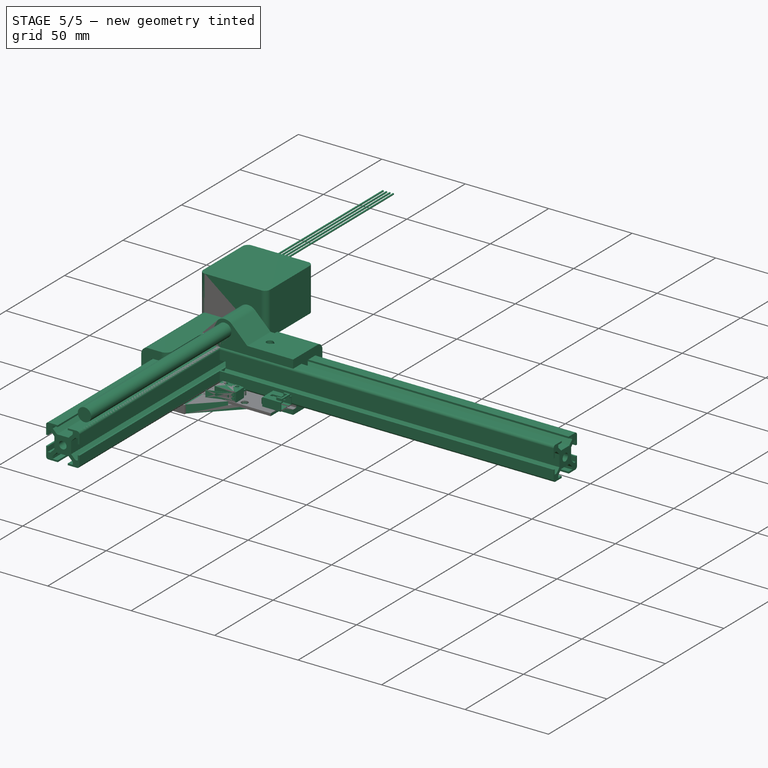
[diagram: stage 5 of 5 — iso view after this stage's code; geometry added in this stage tinted green]
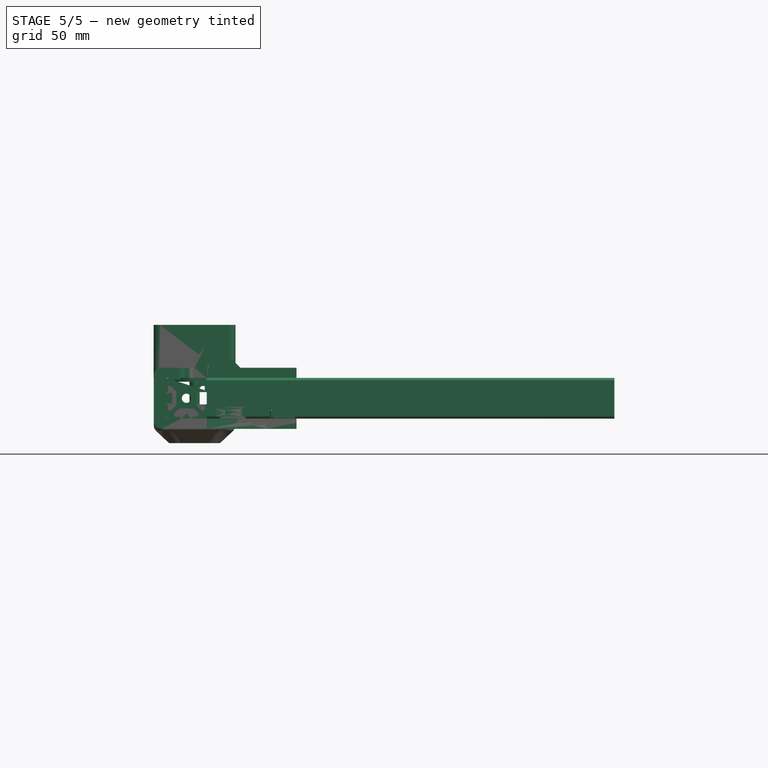
[diagram: stage 5 of 5 — front view after this stage's code; geometry added in this stage tinted green]
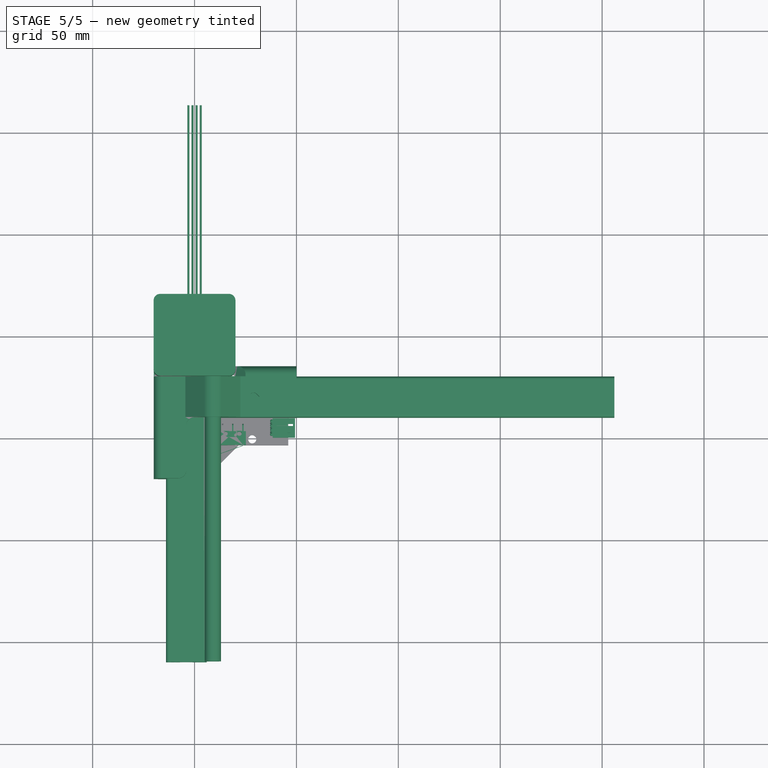
[diagram: stage 5 of 5 — top view after this stage's code; geometry added in this stage tinted green]
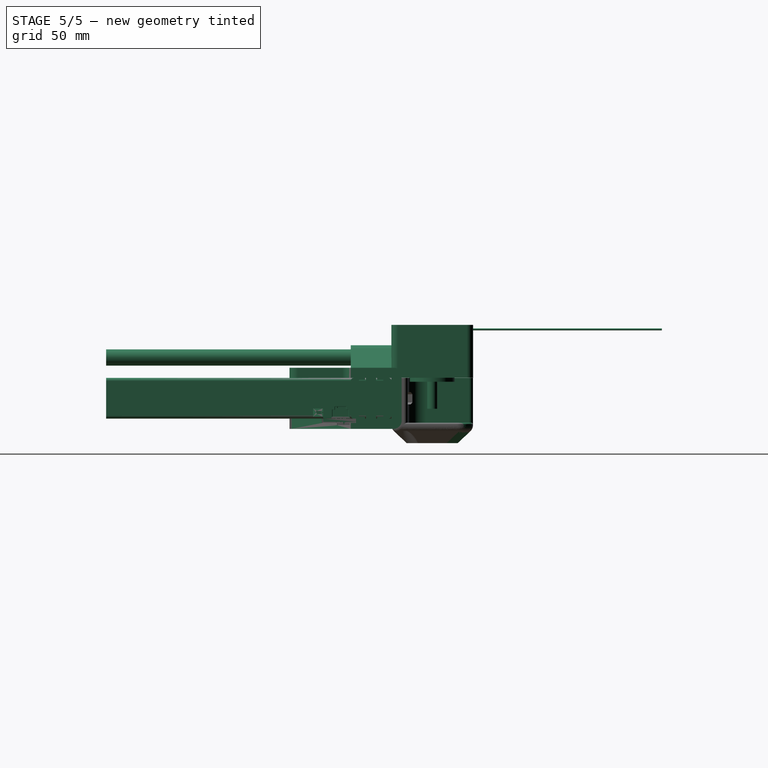
[diagram: stage 5 of 5 — right view after this stage's code; geometry added in this stage tinted green]
FEATURE [Part::Mirroring] Part__Mirroring007  label="T slot extrusion 20x20x200.001 (Mirror #8)"
  Base = (0,0,0)
  Normal = (0,1,0)
  Placement = pos=(-106,-90,-20) rot=(0,0,1;0rad)
FEATURE [Part::Mirroring] Part__Mirroring001  label="YBar (Mirror #2)"
  Base = (0,0,0)
  Normal = (1,0,0)
  Placement = pos=(-106,-90,-20) rot=(0,0,1;0rad)
FEATURE [Part::Mirroring] Part__Mirroring003  label="4018X SNGL (Mirror #4)"
  Base = (0,0,0)
  Normal = (1,0,0)
  Placement = pos=(-106,-90,-20) rot=(0,0,1;0rad)
FEATURE [Part::Mirroring] Part__Mirroring  label="T slot extrusion 20x20x140.001 (Mirror #1)"
  Base = (0,0,0)
  Normal = (1,0,0)
  Placement = pos=(-106,-90,-20) rot=(0,0,1;0rad)
FEATURE [Part::FeaturePython] Clone004  label="Clone of ProfBoltThread003"  # Draft clone (typed FeaturePython)
  Objects = -> [Pad003]
  Placement = pos=(4,-45,-28) rot=(0,0,1;1.5708rad)
  Scale = (1,1,1)
FEATURE [Part::Cylinder] Cylinder  label="SmRodCut"
  Angle = 360
  Height = 50
  Placement = pos=(-9,0,10) rot=(1,0,0;1.5708rad)
  Radius = 4
  expr: Radius = 4 + Parameters.B2
FEATURE [Part::Mirroring] Part__Mirroring011  label="Clone of NEMABoltThread (Mirror #8)"
  Base = (0,0,0)
  Normal = (0,1,0)
  Source = -> Clone012
FEATURE [Part::Cut] Cut014
  Base = -> Cut013
  Tool = -> Clone013
FEATURE [Part::Cut] Cut015
  Base = -> Cut014
  Tool = -> Part__Mirroring011
FEATURE [Part::Cut] Cut016
  Base = -> Cut015
  Tool = -> Clone012
FEATURE [Part::Cut] Cut017
  Base = -> Cut016
  Tool = -> Cylinder
FEATURE [Part::Cut] Cut018  label="BoltCuts"
  Base = -> Cut017
  Tool = -> Clone004
FEATURE [Part::Feature] Cut018001  label="RBackCorner"
  shape: bbox 72.34 x 92.34 x 50.1 mm, 141 faces (baked)
FEATURE [Part::Compound] Compound
  Links = -> [Part__Mirroring,Part__Mirroring003,Part__Mirroring001,Part__Mirroring007]
FEATURE [Part::Mirroring] Part__Mirroring012  label="Compound (Mirror #9)"
  Base = (0,0,0)
  Normal = (1,0,0)
  Source = -> Compound
FEATURE [Part::Mirroring] Part__Mirroring013  label="BoltCuts (Mirror #10)"
  Base = (0,0,0)
  Normal = (1,0,0)
  Source = -> Cut018
FEATURE [Part::Compound] Compound004  label="yEndstop"
  Placement = pos=(46,-37,-20) rot=(0.57735,0.57735,-0.57735;2.0944rad)
FEATURE [App::DocumentObjectGroup] Group  label="Reference"
  Group = -> [Part__Mirroring007,Part__Mirroring001,Part__Mirroring003,Part__Mirroring,Sketch,Chamfer003003,Compound,Part__Mirroring012,Compound004]
FEATURE [Part::Cut] Cut018002  label="EndstopCut"
  Base = -> Part__Mirroring013
  Tool = -> Offset001
FEATURE [App::DocumentObjectGroup] Group003  label="src"
  Group = -> [Fusion,Cut,Cut003,Draft,Common001,Sketch041,Cut010,Cut018,Cut018002]
FEATURE [Part::Feature] Cut018002001  label="LBackCorner"
  shape: bbox 72.34 x 92.34 x 50.1 mm, 163 faces (baked)
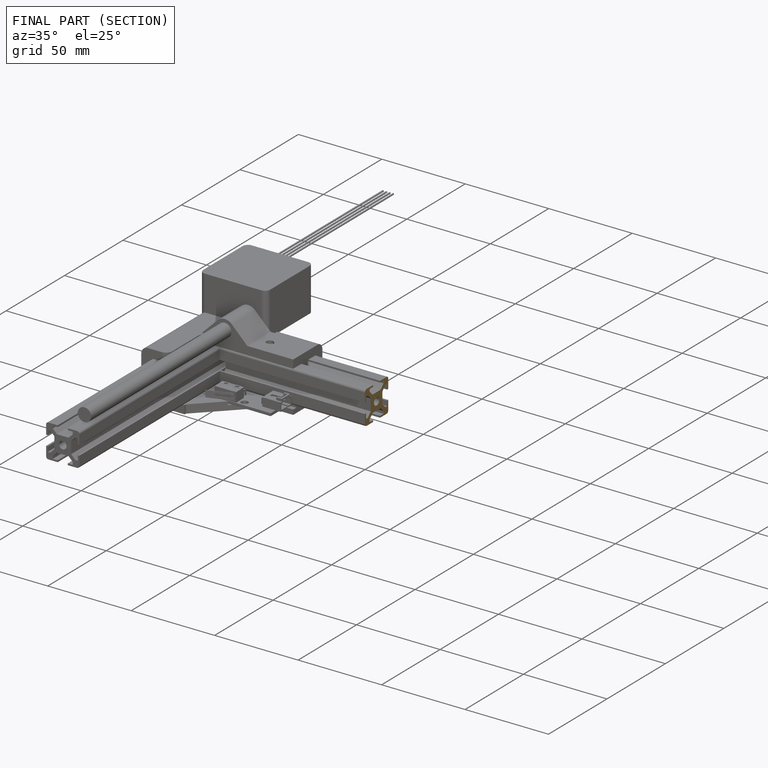
[diagram: finished part — half-section view (interior)]
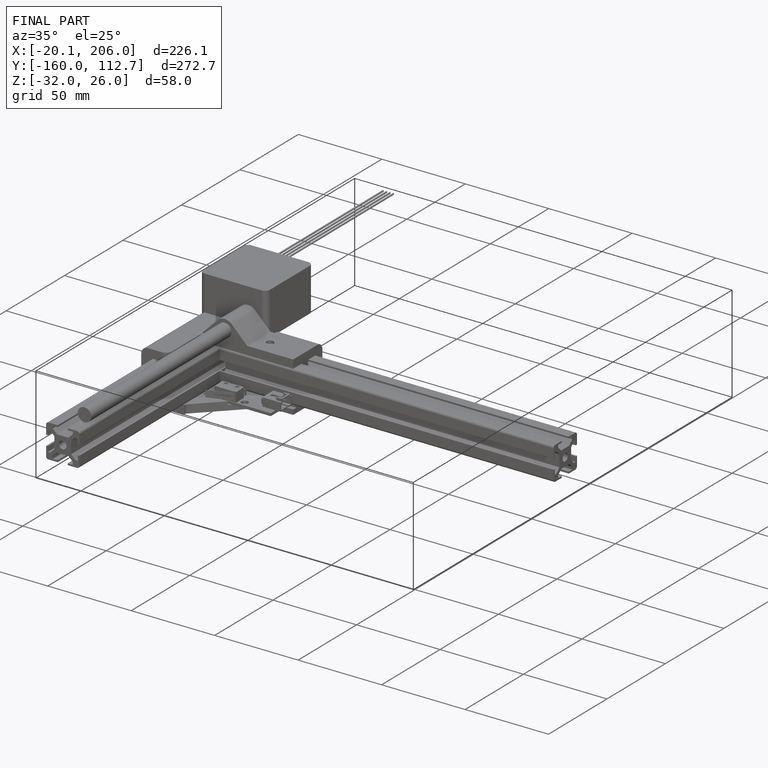
[diagram: finished part — iso view with bounding-box wireframe]
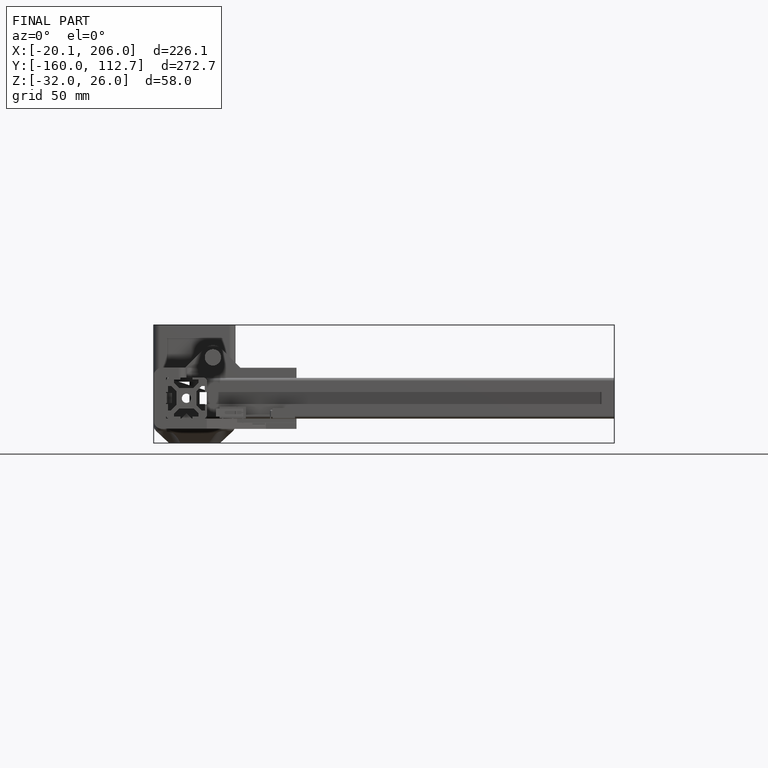
[diagram: finished part — front view with bounding-box wireframe]
